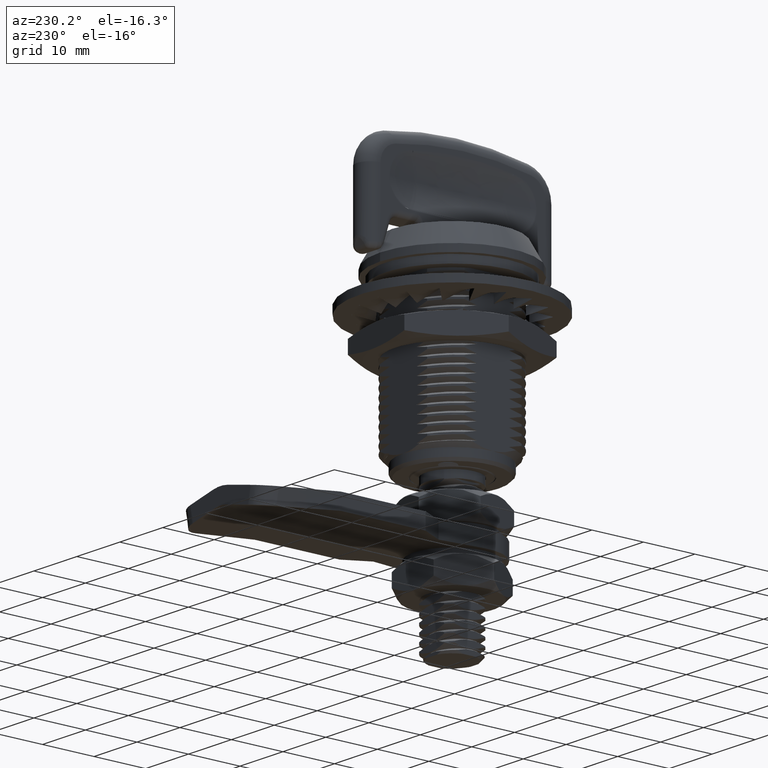
[diagram: clean part render]
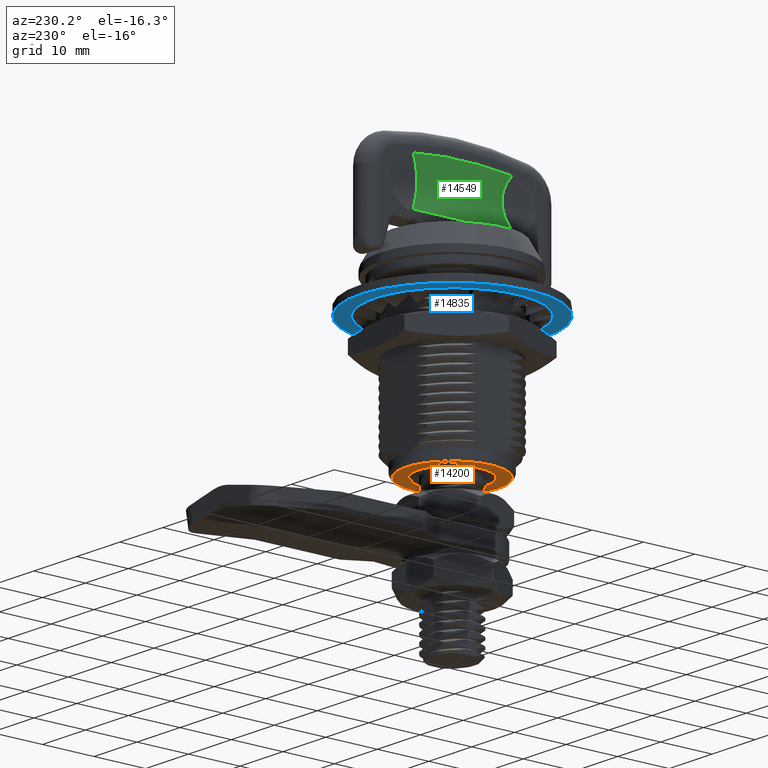
[diagram: same view with three faces highlighted in distinct colors, each labeled with its STEP entity id]
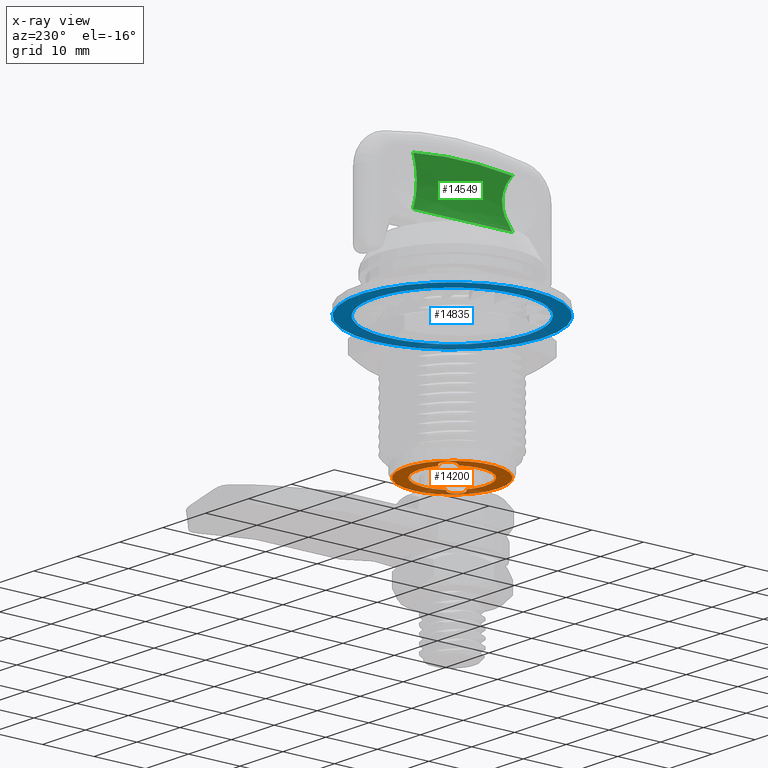
[diagram: x-ray of the same camera — body ghosted, the three highlighted faces saturated]
A machine part, auxiliary view with three faces highlighted in distinct colors.
The next image is the same camera in x-ray (body ghosted, the three faces saturated) — at least one of them is partly hidden behind the body in this view.
Their STEP definitions:

[orange] entity #14200 — the highlighted planar face has unit normal (0, 0, -1).
#2045=LINE('',#18515,#2724);
#2049=LINE('',#18524,#2728);
#2052=LINE('',#18533,#2731);
#2055=LINE('',#18540,#2734);
#2724=VECTOR('',#16014,0.624068695476987);
#2728=VECTOR('',#16024,0.624068695477009);
#2731=VECTOR('',#16033,0.624068695476988);
#2734=VECTOR('',#16042,0.624068695477009);
#3433=FACE_BOUND('',#4374,.T.);
#3503=FACE_OUTER_BOUND('',#4373,.T.);
#4373=EDGE_LOOP('',(#9405));
#4374=EDGE_LOOP('',(#9406,#9407,#9408,#9409,#9410,#9411,#9412,#9413));
#5295=CIRCLE('',#15081,6.55);
#5296=CIRCLE('',#15084,1.5);
#5297=CIRCLE('',#15087,6.55);
#5298=CIRCLE('',#15091,1.5);
#5299=CIRCLE('',#15093,8.99999999999954);
#5572=VERTEX_POINT('',#18512);
#5573=VERTEX_POINT('',#18514);
#5574=VERTEX_POINT('',#18518);
#5575=VERTEX_POINT('',#18522);
#5576=VERTEX_POINT('',#18526);
#5577=VERTEX_POINT('',#18530);
#5578=VERTEX_POINT('',#18532);
#5579=VERTEX_POINT('',#18536);
#5580=VERTEX_POINT('',#18545);
#7068=EDGE_CURVE('',#5573,#5572,#2045,.T.);
#7070=EDGE_CURVE('',#5572,#5574,#5295,.T.);
#7073=EDGE_CURVE('',#5574,#5575,#2049,.T.);
#7074=EDGE_CURVE('',#5576,#5573,#5296,.T.);
#7077=EDGE_CURVE('',#5578,#5577,#2052,.T.);
#7080=EDGE_CURVE('',#5577,#5579,#5297,.T.);
#7081=EDGE_CURVE('',#5579,#5576,#2055,.T.);
#7082=EDGE_CURVE('',#5575,#5578,#5298,.T.);
#7083=EDGE_CURVE('',#5580,#5580,#5299,.T.);
#9405=ORIENTED_EDGE('',*,*,#7083,.T.);
#9406=ORIENTED_EDGE('',*,*,#7073,.T.);
#9407=ORIENTED_EDGE('',*,*,#7082,.T.);
#9408=ORIENTED_EDGE('',*,*,#7077,.T.);
#9409=ORIENTED_EDGE('',*,*,#7080,.T.);
#9410=ORIENTED_EDGE('',*,*,#7081,.T.);
#9411=ORIENTED_EDGE('',*,*,#7074,.T.);
#9412=ORIENTED_EDGE('',*,*,#7068,.T.);
#9413=ORIENTED_EDGE('',*,*,#7070,.T.);
#13959=PLANE('',#15092);
#14200=ADVANCED_FACE('',(#3503,#3433),#13959,.T.);
#15081=AXIS2_PLACEMENT_3D('',#18519,#16018,#16019);
#15084=AXIS2_PLACEMENT_3D('',#18527,#16027,#16028);
#15087=AXIS2_PLACEMENT_3D('',#18538,#16038,#16039);
#15091=AXIS2_PLACEMENT_3D('',#18543,#16047,#16048);
#15092=AXIS2_PLACEMENT_3D('',#18544,#16049,#16050);
#15093=AXIS2_PLACEMENT_3D('',#18546,#16051,#16052);
#16014=DIRECTION('',(0.707106781186548,0.,0.707106781186547));
#16018=DIRECTION('center_axis',(0.,1.,0.));
#16019=DIRECTION('ref_axis',(0.,0.,-1.));
#16024=DIRECTION('',(0.707106781186547,0.,0.707106781186547));
#16027=DIRECTION('center_axis',(0.,1.,0.));
#16028=DIRECTION('ref_axis',(0.,0.,-1.));
#16033=DIRECTION('',(-0.707106781186548,0.,-0.707106781186548));
#16038=DIRECTION('center_axis',(0.,1.,0.));
#16039=DIRECTION('ref_axis',(0.,0.,-1.));
#16042=DIRECTION('',(-0.707106781186547,0.,-0.707106781186547));
#16047=DIRECTION('center_axis',(0.,1.,0.));
#16048=DIRECTION('ref_axis',(0.,0.,-1.));
#16049=DIRECTION('center_axis',(0.,-1.,0.));
#16050=DIRECTION('ref_axis',(0.,0.,-1.));
#16051=DIRECTION('center_axis',(-1.82602471155464E-16,-1.,0.));
#16052=DIRECTION('ref_axis',(-1.,1.82602471155464E-16,0.));
#18512=CARTESIAN_POINT('',(-5.56912443358798,-31.,-3.44780409002798));
#18514=CARTESIAN_POINT('',(-6.010407640086,-31.,-3.889087296526));
#18515=CARTESIAN_POINT('',(-6.010407640086,-31.,-3.889087296526));
#18518=CARTESIAN_POINT('',(3.44780409002797,-31.,5.56912443358796));
#18519=CARTESIAN_POINT('Origin',(0.,-31.,0.));
#18522=CARTESIAN_POINT('',(3.889087296526,-31.,6.010407640086));
#18524=CARTESIAN_POINT('',(3.889087296526,-31.,6.010407640086));
#18526=CARTESIAN_POINT('',(-3.88908729652609,-31.,-6.01040764008591));
#18527=CARTESIAN_POINT('Origin',(-4.949747468306,-31.,-4.949747468306));
#18530=CARTESIAN_POINT('',(5.56912443358798,-31.,3.44780409002798));
#18532=CARTESIAN_POINT('',(6.010407640086,-31.,3.889087296526));
#18533=CARTESIAN_POINT('',(-3.889087296526,-31.,-6.010407640086));
#18536=CARTESIAN_POINT('',(-3.44780409002797,-31.,-5.56912443358796));
#18538=CARTESIAN_POINT('Origin',(0.,-31.,0.));
#18540=CARTESIAN_POINT('',(-3.889087296526,-31.,-6.010407640086));
#18543=CARTESIAN_POINT('Origin',(4.949747468306,-31.,4.949747468306));
#18544=CARTESIAN_POINT('Origin',(0.,-31.,0.));
#18545=CARTESIAN_POINT('',(8.99999999999954,-30.9999999999995,-1.10218211923256E-15));
#18546=CARTESIAN_POINT('Origin',(-9.13012355777453E-17,-30.9999999999995,
0.));

[blue] entity #14835 — the highlighted planar face has unit normal (0, 0, 1).
#147=ELLIPSE('',#15727,32.5760967751827,22.0747997630033);
#148=ELLIPSE('',#15729,32.5763814092082,22.0748961278795);
#149=ELLIPSE('',#15731,32.5760495895535,22.0747837892484);
#150=ELLIPSE('',#15733,32.5760941326299,22.0747988658225);
#151=ELLIPSE('',#15735,32.5725137093716,22.0735857247032);
#152=ELLIPSE('',#15738,31.2986678433796,21.6383626415796);
#153=ELLIPSE('',#15740,32.572514535945,22.0735860047616);
#154=ELLIPSE('',#15742,32.5725565394001,22.0736002242867);
#155=ELLIPSE('',#15744,32.5725116598026,22.0735850326709);
#156=ELLIPSE('',#15746,32.5728176659256,22.0736886414687);
#157=ELLIPSE('',#15748,32.572484225991,22.0735757467888);
#158=ELLIPSE('',#15750,32.5725001807261,22.0735811459485);
#159=ELLIPSE('',#15752,32.5758936209566,22.0747310467664);
#160=ELLIPSE('',#15755,31.3013645356031,21.6392952094517);
#161=ELLIPSE('',#15757,32.5758957947356,22.0747317811291);
#162=ELLIPSE('',#15759,32.5761302037874,22.0748110762977);
#1578=B_SPLINE_CURVE_WITH_KNOTS('',3,(#80548,#80549,#80550,#80551,#80552,
#80553),.UNSPECIFIED.,.F.,.F.,(4,1,1,4),(0.,0.3333333333333,0.6666666666667,
0.999990649445483),.UNSPECIFIED.);
#1579=B_SPLINE_CURVE_WITH_KNOTS('',3,(#80559,#80560,#80561,#80562,#80563,
#80564),.UNSPECIFIED.,.F.,.F.,(4,1,1,4),(0.,0.3333333333333,0.6666666666667,
0.999997280662208),.UNSPECIFIED.);
#1580=B_SPLINE_CURVE_WITH_KNOTS('',3,(#80570,#80571,#80572,#80573,#80574,
#80575),.UNSPECIFIED.,.F.,.F.,(4,1,1,4),(0.,0.3333333333333,0.6666666666667,
0.999997280667224),.UNSPECIFIED.);
#1581=B_SPLINE_CURVE_WITH_KNOTS('',3,(#80581,#80582,#80583,#80584,#80585,
#80586),.UNSPECIFIED.,.F.,.F.,(4,1,1,4),(0.,0.3333333333333,0.6666666666667,
0.999997280682002),.UNSPECIFIED.);
#1582=B_SPLINE_CURVE_WITH_KNOTS('',3,(#80592,#80593,#80594,#80595,#80596,
#80597),.UNSPECIFIED.,.F.,.F.,(4,1,1,4),(0.,0.3333333333333,0.6666666666667,
0.99999729716669),.UNSPECIFIED.);
#1583=B_SPLINE_CURVE_WITH_KNOTS('',3,(#80603,#80604,#80605,#80606,#80607,
#80608),.UNSPECIFIED.,.F.,.F.,(4,1,1,4),(0.,0.3333333333333,0.6666666666667,
0.999997297160489),.UNSPECIFIED.);
#1584=B_SPLINE_CURVE_WITH_KNOTS('',3,(#80610,#80611,#80612,#80613,#80614,
#80615,#80616,#80617,#80618,#80619,#80620,#80621,#80622,#80623,#80624,#80625,
#80626,#80627,#80628),.UNSPECIFIED.,.F.,.F.,(4,3,3,3,3,3,4),(4.89604267970113E-6,
0.257614100592895,0.333333333467669,0.62185317693182,0.666666666733885,
0.918912532930049,1.),.UNSPECIFIED.);
#1585=B_SPLINE_CURVE_WITH_KNOTS('',3,(#80632,#80633,#80634,#80635,#80636,
#80637,#80638,#80639,#80640,#80641,#80642,#80643,#80644,#80645,#80646,#80647,
#80648,#80649,#80650),.UNSPECIFIED.,.F.,.F.,(4,3,3,3,3,3,4),(2.17286647302391E-14,
0.251070032418352,0.333333333288034,0.621984218433627,0.666666666576146,
0.924233463963143,0.999995049320005),.UNSPECIFIED.);
#1586=B_SPLINE_CURVE_WITH_KNOTS('',3,(#80656,#80657,#80658,#80659,#80660,
#80661),.UNSPECIFIED.,.F.,.F.,(4,1,1,4),(0.,0.3333333333333,0.6666666666667,
0.999997297154749),.UNSPECIFIED.);
#1587=B_SPLINE_CURVE_WITH_KNOTS('',3,(#80667,#80668,#80669,#80670,#80671,
#80672),.UNSPECIFIED.,.F.,.F.,(4,1,1,4),(0.,0.3333333333333,0.6666666666667,
0.999997297342256),.UNSPECIFIED.);
#1588=B_SPLINE_CURVE_WITH_KNOTS('',3,(#80678,#80679,#80680,#80681,#80682,
#80683),.UNSPECIFIED.,.F.,.F.,(4,1,1,4),(0.,0.3333333333333,0.6666666666667,
0.999997297346294),.UNSPECIFIED.);
#1589=B_SPLINE_CURVE_WITH_KNOTS('',3,(#80689,#80690,#80691,#80692,#80693,
#80694),.UNSPECIFIED.,.F.,.F.,(4,1,1,4),(0.,0.3333333333333,0.6666666666667,
0.999997297361714),.UNSPECIFIED.);
#1590=B_SPLINE_CURVE_WITH_KNOTS('',3,(#80700,#80701,#80702,#80703,#80704,
#80705),.UNSPECIFIED.,.F.,.F.,(4,1,1,4),(0.,0.3333333333333,0.6666666666667,
0.99999729733616),.UNSPECIFIED.);
#1591=B_SPLINE_CURVE_WITH_KNOTS('',3,(#80711,#80712,#80713,#80714,#80715,
#80716),.UNSPECIFIED.,.F.,.F.,(4,1,1,4),(0.,0.3333333333333,0.6666666666667,
0.999997297328471),.UNSPECIFIED.);
#1592=B_SPLINE_CURVE_WITH_KNOTS('',3,(#80722,#80723,#80724,#80725,#80726,
#80727),.UNSPECIFIED.,.F.,.F.,(4,1,1,4),(0.,0.3333333333333,0.6666666666667,
0.999997276511755),.UNSPECIFIED.);
#1593=B_SPLINE_CURVE_WITH_KNOTS('',3,(#80733,#80734,#80735,#80736,#80737,
#80738),.UNSPECIFIED.,.F.,.F.,(4,1,1,4),(0.,0.3333333333333,0.6666666666667,
0.999997276495621),.UNSPECIFIED.);
#1594=B_SPLINE_CURVE_WITH_KNOTS('',3,(#80740,#80741,#80742,#80743,#80744,
#80745,#80746,#80747,#80748,#80749,#80750,#80751,#80752,#80753,#80754,#80755,
#80756,#80757,#80758),.UNSPECIFIED.,.F.,.F.,(4,3,3,3,3,3,4),(4.89604216553796E-6,
0.257614149896902,0.333333333467354,0.621854877969275,0.666666666733727,
0.918913017984488,1.),.UNSPECIFIED.);
#1595=B_SPLINE_CURVE_WITH_KNOTS('',3,(#80762,#80763,#80764,#80765,#80766,
#80767,#80768,#80769,#80770,#80771,#80772,#80773,#80774,#80775,#80776,#80777,
#80778,#80779,#80780),.UNSPECIFIED.,.F.,.F.,(4,3,3,3,3,3,4),(2.14852918552607E-14,
0.251082535720633,0.33333333327682,0.62198253909785,0.66666666655372,0.924233448881374,
0.999995049286406),.UNSPECIFIED.);
#1596=B_SPLINE_CURVE_WITH_KNOTS('',3,(#80786,#80787,#80788,#80789,#80790,
#80791),.UNSPECIFIED.,.F.,.F.,(4,1,1,4),(0.,0.3333333333333,0.6666666666667,
0.999997276465651),.UNSPECIFIED.);
#1597=B_SPLINE_CURVE_WITH_KNOTS('',3,(#80797,#80798,#80799,#80800,#80801,
#80802),.UNSPECIFIED.,.F.,.F.,(4,1,1,4),(0.,0.3333333333333,0.6666666666667,
0.999997280636517),.UNSPECIFIED.);
#3481=FACE_BOUND('',#5057,.T.);
#4138=FACE_OUTER_BOUND('',#5056,.T.);
#5056=EDGE_LOOP('',(#12873));
#5057=EDGE_LOOP('',(#12874,#12875,#12876,#12877,#12878,#12879,#12880,#12881,
#12882,#12883,#12884,#12885,#12886,#12887,#12888,#12889,#12890,#12891,#12892,
#12893,#12894,#12895,#12896,#12897,#12898,#12899,#12900,#12901,#12902,#12903,
#12904,#12905,#12906,#12907,#12908,#12909,#12910,#12911,#12912,#12913,#12914,
#12915,#12916,#12917,#12918,#12919,#12920,#12921,#12922,#12923,#12924,#12925,
#12926,#12927));
#5498=CIRCLE('',#15724,17.9);
#5499=CIRCLE('',#15726,15.);
#5500=CIRCLE('',#15728,15.);
#5501=CIRCLE('',#15730,15.);
#5502=CIRCLE('',#15732,15.);
#5503=CIRCLE('',#15734,15.);
#5504=CIRCLE('',#15736,15.);
#5505=CIRCLE('',#15737,15.);
#5506=CIRCLE('',#15739,15.);
#5507=CIRCLE('',#15741,15.);
#5508=CIRCLE('',#15743,15.);
#5509=CIRCLE('',#15745,15.);
#5510=CIRCLE('',#15747,15.);
#5511=CIRCLE('',#15749,15.);
#5512=CIRCLE('',#15751,15.);
#5513=CIRCLE('',#15753,15.);
#5514=CIRCLE('',#15754,15.);
#5515=CIRCLE('',#15756,15.);
#5516=CIRCLE('',#15758,15.);
#6749=VERTEX_POINT('',#80541);
#6750=VERTEX_POINT('',#80544);
#6751=VERTEX_POINT('',#80545);
#6752=VERTEX_POINT('',#80547);
#6753=VERTEX_POINT('',#80554);
#6754=VERTEX_POINT('',#80556);
#6755=VERTEX_POINT('',#80558);
#6756=VERTEX_POINT('',#80565);
#6757=VERTEX_POINT('',#80567);
#6758=VERTEX_POINT('',#80569);
#6759=VERTEX_POINT('',#80576);
#6760=VERTEX_POINT('',#80578);
#6761=VERTEX_POINT('',#80580);
#6762=VERTEX_POINT('',#80587);
#6763=VERTEX_POINT('',#80589);
#6764=VERTEX_POINT('',#80591);
#6765=VERTEX_POINT('',#80598);
#6766=VERTEX_POINT('',#80600);
#6767=VERTEX_POINT('',#80602);
#6768=VERTEX_POINT('',#80609);
#6769=VERTEX_POINT('',#80629);
#6770=VERTEX_POINT('',#80631);
#6771=VERTEX_POINT('',#80651);
#6772=VERTEX_POINT('',#80653);
#6773=VERTEX_POINT('',#80655);
#6774=VERTEX_POINT('',#80662);
#6775=VERTEX_POINT('',#80664);
#6776=VERTEX_POINT('',#80666);
#6777=VERTEX_POINT('',#80673);
#6778=VERTEX_POINT('',#80675);
#6779=VERTEX_POINT('',#80677);
#6780=VERTEX_POINT('',#80684);
#6781=VERTEX_POINT('',#80686);
#6782=VERTEX_POINT('',#80688);
#6783=VERTEX_POINT('',#80695);
#6784=VERTEX_POINT('',#80697);
#6785=VERTEX_POINT('',#80699);
#6786=VERTEX_POINT('',#80706);
#6787=VERTEX_POINT('',#80708);
#6788=VERTEX_POINT('',#80710);
#6789=VERTEX_POINT('',#80717);
#6790=VERTEX_POINT('',#80719);
#6791=VERTEX_POINT('',#80721);
#6792=VERTEX_POINT('',#80728);
#6793=VERTEX_POINT('',#80730);
#6794=VERTEX_POINT('',#80732);
#6795=VERTEX_POINT('',#80739);
#6796=VERTEX_POINT('',#80759);
#6797=VERTEX_POINT('',#80761);
#6798=VERTEX_POINT('',#80781);
#6799=VERTEX_POINT('',#80783);
#6800=VERTEX_POINT('',#80785);
#6801=VERTEX_POINT('',#80792);
#6802=VERTEX_POINT('',#80794);
#6803=VERTEX_POINT('',#80796);
#8839=EDGE_CURVE('',#6749,#6749,#5498,.T.);
#8840=EDGE_CURVE('',#6750,#6751,#5499,.T.);
#8841=EDGE_CURVE('',#6752,#6750,#1578,.T.);
#8842=EDGE_CURVE('',#6753,#6752,#147,.T.);
#8843=EDGE_CURVE('',#6754,#6753,#5500,.T.);
#8844=EDGE_CURVE('',#6755,#6754,#1579,.T.);
#8845=EDGE_CURVE('',#6756,#6755,#148,.T.);
#8846=EDGE_CURVE('',#6757,#6756,#5501,.T.);
#8847=EDGE_CURVE('',#6758,#6757,#1580,.T.);
#8848=EDGE_CURVE('',#6759,#6758,#149,.T.);
#8849=EDGE_CURVE('',#6760,#6759,#5502,.T.);
#8850=EDGE_CURVE('',#6761,#6760,#1581,.T.);
#8851=EDGE_CURVE('',#6762,#6761,#150,.T.);
#8852=EDGE_CURVE('',#6763,#6762,#5503,.T.);
#8853=EDGE_CURVE('',#6764,#6763,#1582,.T.);
#8854=EDGE_CURVE('',#6765,#6764,#151,.T.);
#8855=EDGE_CURVE('',#6766,#6765,#5504,.T.);
#8856=EDGE_CURVE('',#6767,#6766,#1583,.T.);
#8857=EDGE_CURVE('',#6768,#6767,#1584,.T.);
#8858=EDGE_CURVE('',#6768,#6769,#5505,.T.);
#8859=EDGE_CURVE('',#6770,#6769,#1585,.T.);
#8860=EDGE_CURVE('',#6771,#6770,#152,.T.);
#8861=EDGE_CURVE('',#6772,#6771,#5506,.T.);
#8862=EDGE_CURVE('',#6773,#6772,#1586,.T.);
#8863=EDGE_CURVE('',#6774,#6773,#153,.T.);
#8864=EDGE_CURVE('',#6775,#6774,#5507,.T.);
#8865=EDGE_CURVE('',#6776,#6775,#1587,.T.);
#8866=EDGE_CURVE('',#6777,#6776,#154,.T.);
#8867=EDGE_CURVE('',#6778,#6777,#5508,.T.);
#8868=EDGE_CURVE('',#6779,#6778,#1588,.T.);
#8869=EDGE_CURVE('',#6780,#6779,#155,.T.);
#8870=EDGE_CURVE('',#6781,#6780,#5509,.T.);
#8871=EDGE_CURVE('',#6782,#6781,#1589,.T.);
#8872=EDGE_CURVE('',#6783,#6782,#156,.T.);
#8873=EDGE_CURVE('',#6784,#6783,#5510,.T.);
#8874=EDGE_CURVE('',#6785,#6784,#1590,.T.);
#8875=EDGE_CURVE('',#6786,#6785,#157,.T.);
#8876=EDGE_CURVE('',#6787,#6786,#5511,.T.);
#8877=EDGE_CURVE('',#6788,#6787,#1591,.T.);
#8878=EDGE_CURVE('',#6789,#6788,#158,.T.);
#8879=EDGE_CURVE('',#6790,#6789,#5512,.T.);
#8880=EDGE_CURVE('',#6791,#6790,#1592,.T.);
#8881=EDGE_CURVE('',#6792,#6791,#159,.T.);
#8882=EDGE_CURVE('',#6793,#6792,#5513,.T.);
#8883=EDGE_CURVE('',#6794,#6793,#1593,.T.);
#8884=EDGE_CURVE('',#6795,#6794,#1594,.T.);
#8885=EDGE_CURVE('',#6795,#6796,#5514,.T.);
#8886=EDGE_CURVE('',#6797,#6796,#1595,.T.);
#8887=EDGE_CURVE('',#6798,#6797,#160,.T.);
#8888=EDGE_CURVE('',#6799,#6798,#5515,.T.);
#8889=EDGE_CURVE('',#6800,#6799,#1596,.T.);
#8890=EDGE_CURVE('',#6801,#6800,#161,.T.);
#8891=EDGE_CURVE('',#6802,#6801,#5516,.T.);
#8892=EDGE_CURVE('',#6803,#6802,#1597,.T.);
#8893=EDGE_CURVE('',#6751,#6803,#162,.T.);
#12873=ORIENTED_EDGE('',*,*,#8839,.F.);
#12874=ORIENTED_EDGE('',*,*,#8840,.F.);
#12875=ORIENTED_EDGE('',*,*,#8841,.F.);
#12876=ORIENTED_EDGE('',*,*,#8842,.F.);
#12877=ORIENTED_EDGE('',*,*,#8843,.F.);
#12878=ORIENTED_EDGE('',*,*,#8844,.F.);
#12879=ORIENTED_EDGE('',*,*,#8845,.F.);
#12880=ORIENTED_EDGE('',*,*,#8846,.F.);
#12881=ORIENTED_EDGE('',*,*,#8847,.F.);
#12882=ORIENTED_EDGE('',*,*,#8848,.F.);
#12883=ORIENTED_EDGE('',*,*,#8849,.F.);
#12884=ORIENTED_EDGE('',*,*,#8850,.F.);
#12885=ORIENTED_EDGE('',*,*,#8851,.F.);
#12886=ORIENTED_EDGE('',*,*,#8852,.F.);
#12887=ORIENTED_EDGE('',*,*,#8853,.F.);
#12888=ORIENTED_EDGE('',*,*,#8854,.F.);
#12889=ORIENTED_EDGE('',*,*,#8855,.F.);
#12890=ORIENTED_EDGE('',*,*,#8856,.F.);
#12891=ORIENTED_EDGE('',*,*,#8857,.F.);
#12892=ORIENTED_EDGE('',*,*,#8858,.T.);
#12893=ORIENTED_EDGE('',*,*,#8859,.F.);
#12894=ORIENTED_EDGE('',*,*,#8860,.F.);
#12895=ORIENTED_EDGE('',*,*,#8861,.F.);
#12896=ORIENTED_EDGE('',*,*,#8862,.F.);
#12897=ORIENTED_EDGE('',*,*,#8863,.F.);
#12898=ORIENTED_EDGE('',*,*,#8864,.F.);
#12899=ORIENTED_EDGE('',*,*,#8865,.F.);
#12900=ORIENTED_EDGE('',*,*,#8866,.F.);
#12901=ORIENTED_EDGE('',*,*,#8867,.F.);
#12902=ORIENTED_EDGE('',*,*,#8868,.F.);
#12903=ORIENTED_EDGE('',*,*,#8869,.F.);
#12904=ORIENTED_EDGE('',*,*,#8870,.F.);
#12905=ORIENTED_EDGE('',*,*,#8871,.F.);
#12906=ORIENTED_EDGE('',*,*,#8872,.F.);
#12907=ORIENTED_EDGE('',*,*,#8873,.F.);
#12908=ORIENTED_EDGE('',*,*,#8874,.F.);
#12909=ORIENTED_EDGE('',*,*,#8875,.F.);
#12910=ORIENTED_EDGE('',*,*,#8876,.F.);
#12911=ORIENTED_EDGE('',*,*,#8877,.F.);
#12912=ORIENTED_EDGE('',*,*,#8878,.F.);
#12913=ORIENTED_EDGE('',*,*,#8879,.F.);
#12914=ORIENTED_EDGE('',*,*,#8880,.F.);
#12915=ORIENTED_EDGE('',*,*,#8881,.F.);
#12916=ORIENTED_EDGE('',*,*,#8882,.F.);
#12917=ORIENTED_EDGE('',*,*,#8883,.F.);
#12918=ORIENTED_EDGE('',*,*,#8884,.F.);
#12919=ORIENTED_EDGE('',*,*,#8885,.T.);
#12920=ORIENTED_EDGE('',*,*,#8886,.F.);
#12921=ORIENTED_EDGE('',*,*,#8887,.F.);
#12922=ORIENTED_EDGE('',*,*,#8888,.F.);
#12923=ORIENTED_EDGE('',*,*,#8889,.F.);
#12924=ORIENTED_EDGE('',*,*,#8890,.F.);
#12925=ORIENTED_EDGE('',*,*,#8891,.F.);
#12926=ORIENTED_EDGE('',*,*,#8892,.F.);
#12927=ORIENTED_EDGE('',*,*,#8893,.F.);
#14125=PLANE('',#15725);
#14835=ADVANCED_FACE('',(#4138,#3481),#14125,.F.);
#15724=AXIS2_PLACEMENT_3D('',#80542,#17770,#17771);
#15725=AXIS2_PLACEMENT_3D('',#80543,#17772,#17773);
#15726=AXIS2_PLACEMENT_3D('',#80546,#17774,#17775);
#15727=AXIS2_PLACEMENT_3D('',#80555,#17776,#17777);
#15728=AXIS2_PLACEMENT_3D('',#80557,#17778,#17779);
#15729=AXIS2_PLACEMENT_3D('',#80566,#17780,#17781);
#15730=AXIS2_PLACEMENT_3D('',#80568,#17782,#17783);
#15731=AXIS2_PLACEMENT_3D('',#80577,#17784,#17785);
#15732=AXIS2_PLACEMENT_3D('',#80579,#17786,#17787);
#15733=AXIS2_PLACEMENT_3D('',#80588,#17788,#17789);
#15734=AXIS2_PLACEMENT_3D('',#80590,#17790,#17791);
#15735=AXIS2_PLACEMENT_3D('',#80599,#17792,#17793);
#15736=AXIS2_PLACEMENT_3D('',#80601,#17794,#17795);
#15737=AXIS2_PLACEMENT_3D('',#80630,#17796,#17797);
#15738=AXIS2_PLACEMENT_3D('',#80652,#17798,#17799);
#15739=AXIS2_PLACEMENT_3D('',#80654,#17800,#17801);
#15740=AXIS2_PLACEMENT_3D('',#80663,#17802,#17803);
#15741=AXIS2_PLACEMENT_3D('',#80665,#17804,#17805);
#15742=AXIS2_PLACEMENT_3D('',#80674,#17806,#17807);
#15743=AXIS2_PLACEMENT_3D('',#80676,#17808,#17809);
#15744=AXIS2_PLACEMENT_3D('',#80685,#17810,#17811);
#15745=AXIS2_PLACEMENT_3D('',#80687,#17812,#17813);
#15746=AXIS2_PLACEMENT_3D('',#80696,#17814,#17815);
#15747=AXIS2_PLACEMENT_3D('',#80698,#17816,#17817);
#15748=AXIS2_PLACEMENT_3D('',#80707,#17818,#17819);
#15749=AXIS2_PLACEMENT_3D('',#80709,#17820,#17821);
#15750=AXIS2_PLACEMENT_3D('',#80718,#17822,#17823);
#15751=AXIS2_PLACEMENT_3D('',#80720,#17824,#17825);
#15752=AXIS2_PLACEMENT_3D('',#80729,#17826,#17827);
#15753=AXIS2_PLACEMENT_3D('',#80731,#17828,#17829);
#15754=AXIS2_PLACEMENT_3D('',#80760,#17830,#17831);
#15755=AXIS2_PLACEMENT_3D('',#80782,#17832,#17833);
#15756=AXIS2_PLACEMENT_3D('',#80784,#17834,#17835);
#15757=AXIS2_PLACEMENT_3D('',#80793,#17836,#17837);
#15758=AXIS2_PLACEMENT_3D('',#80795,#17838,#17839);
#15759=AXIS2_PLACEMENT_3D('',#80803,#17840,#17841);
#17770=DIRECTION('center_axis',(0.,1.,0.));
#17771=DIRECTION('ref_axis',(0.,0.,-1.));
#17772=DIRECTION('center_axis',(0.,1.,0.));
#17773=DIRECTION('ref_axis',(0.,0.,-1.));
#17774=DIRECTION('center_axis',(0.,-1.,0.));
#17775=DIRECTION('ref_axis',(0.870359775681281,0.,0.492416349115289));
#17776=DIRECTION('center_axis',(-5.18149960831903E-6,-0.999999999985621,
-1.38212884529684E-6));
#17777=DIRECTION('ref_axis',(0.95931244358276,-5.3609165118242E-6,0.282346658486575));
#17778=DIRECTION('center_axis',(0.,-1.,0.));
#17779=DIRECTION('ref_axis',(0.9862869689402,0.,0.1650394343748));
#17780=DIRECTION('center_axis',(-5.34156373652646E-6,-0.999999999985622,
4.73390949905439E-7));
#17781=DIRECTION('ref_axis',(0.998027061878059,-5.36074711635988E-6,-0.0627852190432612));
#17782=DIRECTION('center_axis',(0.,-1.,0.));
#17783=DIRECTION('ref_axis',(0.983253397687806,0.,-0.182243671866501));
#17784=DIRECTION('center_axis',(-4.85841084939868E-6,-0.999999999985617,
2.27220217267391E-6));
#17785=DIRECTION('ref_axis',(0.916364901680019,-5.36173982495408E-6,-0.400344060703067));
#17786=DIRECTION('center_axis',(0.,-1.,0.));
#17787=DIRECTION('ref_axis',(0.861624955395062,0.,-0.507545501645377));
#17788=DIRECTION('center_axis',(-3.78770853081968E-6,-0.999999999985621,
3.79624589522924E-6));
#17789=DIRECTION('ref_axis',(0.724175599315937,-5.36091655656493E-6,-0.689615618534459));
#17790=DIRECTION('center_axis',(0.,-1.,0.));
#17791=DIRECTION('ref_axis',(0.636071818433165,0.,-0.771629860616557));
#17792=DIRECTION('center_axis',(-2.26121467194384E-6,-0.999999999985617,
4.86353310842216E-6));
#17793=DIRECTION('ref_axis',(0.444643605651468,-5.36173810233184E-6,-0.895707577239645));
#17794=DIRECTION('center_axis',(0.,-1.,0.));
#17795=DIRECTION('ref_axis',(0.333799038552695,0.,-0.942644260504087));
#17796=DIRECTION('center_axis',(0.,1.,0.));
#17797=DIRECTION('ref_axis',(0.00873359573436399,0.,-0.999961861425499));
#17798=DIRECTION('center_axis',(1.33521325024097E-6,-0.999999999986828,
4.95590998869242E-6));
#17799=DIRECTION('ref_axis',(-0.234824842652416,-5.13087259599155E-6,-0.972037701556345));
#17800=DIRECTION('center_axis',(0.,-1.,0.));
#17801=DIRECTION('ref_axis',(-0.350215152388193,0.,-0.936669283705682));
#17802=DIRECTION('center_axis',(3.08133588792822E-6,-0.999999999985617,
4.39003590332198E-6));
#17803=DIRECTION('ref_axis',(-0.55338371588205,-5.36173810248998E-6,-0.832926445112548));
#17804=DIRECTION('center_axis',(0.,-1.,0.));
#17805=DIRECTION('ref_axis',(-0.6494543571451,0.,-0.7604005773178));
#17806=DIRECTION('center_axis',(4.39569267284239E-6,-0.999999999985625,
3.07055304618443E-6));
#17807=DIRECTION('ref_axis',(0.804888212909002,5.36018864772611E-6,0.593426461064403));
#17808=DIRECTION('center_axis',(0.,-1.,0.));
#17809=DIRECTION('ref_axis',(-0.870359781388221,0.,-0.492416339028112));
#17810=DIRECTION('center_axis',(5.1814987371233E-6,-0.999999999985621,1.38212855372953E-6));
#17811=DIRECTION('ref_axis',(0.959311314772916,5.36091504565023E-6,0.282350493748319));
#17812=DIRECTION('center_axis',(0.,-1.,0.));
#17813=DIRECTION('ref_axis',(-0.986286970850619,0.,-0.165039422958003));
#17814=DIRECTION('center_axis',(5.34156251784705E-6,-0.999999999985622,
-4.73390906384433E-7));
#17815=DIRECTION('ref_axis',(0.998027312098286,5.3607453509596E-6,-0.0627812414430705));
#17816=DIRECTION('center_axis',(0.,-1.,0.));
#17817=DIRECTION('ref_axis',(-0.983253395583481,0.,0.182243683219897));
#17818=DIRECTION('center_axis',(4.85840975536705E-6,-0.999999999985617,
-2.27220173757639E-6));
#17819=DIRECTION('ref_axis',(0.916366498101928,5.36173810136335E-6,-0.400340406563791));
#17820=DIRECTION('center_axis',(0.,-1.,0.));
#17821=DIRECTION('ref_axis',(-0.861624949538708,0.,0.507545511587305));
#17822=DIRECTION('center_axis',(3.78770774659441E-6,-0.999999999985621,
-3.79624519887909E-6));
#17823=DIRECTION('ref_axis',(0.72417835894334,5.36091495981565E-6,-0.689612720597142));
#17824=DIRECTION('center_axis',(0.,-1.,0.));
#17825=DIRECTION('ref_axis',(-0.636071829480821,0.,0.771629851509726));
#17826=DIRECTION('center_axis',(2.26121515740337E-6,-0.999999999985617,
-4.8635339991074E-6));
#17827=DIRECTION('ref_axis',(0.444640056420922,5.36173965940134E-6,-0.895709339125841));
#17828=DIRECTION('center_axis',(0.,-1.,0.));
#17829=DIRECTION('ref_axis',(-0.333799052054821,0.,0.942644255722859));
#17830=DIRECTION('center_axis',(0.,1.,0.));
#17831=DIRECTION('ref_axis',(-0.00873359573438299,0.,0.999961861425499));
#17832=DIRECTION('center_axis',(-1.33521346254419E-6,-0.999999999986828,
-4.95591103594381E-6));
#17833=DIRECTION('ref_axis',(-0.234828788230325,5.13087420812155E-6,-0.972036748375261));
#17834=DIRECTION('center_axis',(0.,-1.,0.));
#17835=DIRECTION('ref_axis',(0.350215138955792,0.,0.936669288727978));
#17836=DIRECTION('center_axis',(-3.08133653496851E-6,-0.999999999985617,
-4.39003694920087E-6));
#17837=DIRECTION('ref_axis',(-0.553387012342825,5.36173987445383E-6,-0.832924254984529));
#17838=DIRECTION('center_axis',(0.,-1.,0.));
#17839=DIRECTION('ref_axis',(0.649454348341019,0.,0.760400584837322));
#17840=DIRECTION('center_axis',(-4.39569363476187E-6,-0.999999999985625,
-3.07055379642673E-6));
#17841=DIRECTION('ref_axis',(0.80489058141966,-5.36019041420964E-6,0.59342324854457));
#80541=CARTESIAN_POINT('',(0.,27.,17.9));
#80542=CARTESIAN_POINT('Origin',(0.,27.,0.));
#80543=CARTESIAN_POINT('Origin',(0.,27.,0.));
#80544=CARTESIAN_POINT('',(13.0553966271535,27.00000007374,7.38624523216657));
#80545=CARTESIAN_POINT('',(12.924382507585,26.9999994834562,7.6131683609963));
#80546=CARTESIAN_POINT('Origin',(0.,27.,0.));
#80547=CARTESIAN_POINT('',(14.09531012507,27.0000000010019,5.13027952801494));
#80548=CARTESIAN_POINT('Ctrl Pts',(14.09531012507,27.00000000084,5.130279528015));
#80549=CARTESIAN_POINT('Ctrl Pts',(14.00070549064,26.99999742804,5.39020362483));
#80550=CARTESIAN_POINT('Ctrl Pts',(13.79764529631,27.00000121008,5.903949709596));
#80551=CARTESIAN_POINT('Ctrl Pts',(13.4502407456656,26.9999996226748,6.6573599174779));
#80552=CARTESIAN_POINT('Ctrl Pts',(13.1915896877795,27.0000000737273,7.14550376459875));
#80553=CARTESIAN_POINT('Ctrl Pts',(13.0553966271535,27.00000007374,7.38624523216657));
#80554=CARTESIAN_POINT('',(14.7488038045855,26.9999994834585,2.73363897197671));
#80555=CARTESIAN_POINT('Origin',(-16.8607331065025,27.0001743501189,-4.96324614091179));
#80556=CARTESIAN_POINT('',(14.7943016801927,27.0000005186024,2.47560770006722));
#80557=CARTESIAN_POINT('Origin',(0.,27.,0.));
#80558=CARTESIAN_POINT('',(14.99991785169,27.0000000010008,5.8258017356922E-6));
#80559=CARTESIAN_POINT('Ctrl Pts',(14.99991785169,27.00000000084,5.825801796448E-6));
#80560=CARTESIAN_POINT('Ctrl Pts',(14.99991785167,26.99999742806,0.2766112722101));
#80561=CARTESIAN_POINT('Ctrl Pts',(14.98481519498,27.00000121007,0.8288253537832));
#80562=CARTESIAN_POINT('Ctrl Pts',(14.9160427137361,26.9999996226644,1.65562420341753));
#80563=CARTESIAN_POINT('Ctrl Pts',(14.8399441935658,27.0000000737463,2.20279864901141));
#80564=CARTESIAN_POINT('Ctrl Pts',(14.7943018132594,27.00000007375,2.47560772232996));
#80565=CARTESIAN_POINT('',(14.7943016935834,26.9999994834476,-2.47560762125485));
#80566=CARTESIAN_POINT('Origin',(-17.5417205870792,27.0001743461307,1.10280440638608));
#80567=CARTESIAN_POINT('',(14.7488038189528,27.0000005186003,-2.73363889334969));
#80568=CARTESIAN_POINT('Origin',(0.,27.,0.));
#80569=CARTESIAN_POINT('',(14.09531411015,27.0000000010643,-5.13026857908406));
#80570=CARTESIAN_POINT('Ctrl Pts',(14.09531411015,27.00000000091,-5.130268579084));
#80571=CARTESIAN_POINT('Ctrl Pts',(14.18991874462,26.9999974281,-4.870344482189));
#80572=CARTESIAN_POINT('Ctrl Pts',(14.36459522887,27.00000121005,-4.346267571798));
#80573=CARTESIAN_POINT('Ctrl Pts',(14.5827520966973,26.9999996226744,-3.54580922000756));
#80574=CARTESIAN_POINT('Ctrl Pts',(14.6983875614327,27.0000000737364,-3.00560620441339));
#80575=CARTESIAN_POINT('Ctrl Pts',(14.7488039515976,27.00000007374,-2.73363891793894));
#80576=CARTESIAN_POINT('',(13.0553884577049,26.9999994834623,-7.38625939929835));
#80577=CARTESIAN_POINT('Origin',(-16.1063408109251,27.0001743766896,7.0357842599938));
#80578=CARTESIAN_POINT('',(12.9243825479851,27.0000005185957,-7.61316829201702));
#80579=CARTESIAN_POINT('Origin',(0.,27.,0.));
#80580=CARTESIAN_POINT('',(11.49060746225,27.0000000010012,-9.64175687860205));
#80581=CARTESIAN_POINT('Ctrl Pts',(11.49060746225,27.00000000084,-9.641756878602));
#80582=CARTESIAN_POINT('Ctrl Pts',(11.66840601599,26.99999742803,-9.429864813385));
#80583=CARTESIAN_POINT('Ctrl Pts',(12.01179307933,27.00000121008,-8.997136484205));
#80584=CARTESIAN_POINT('Ctrl Pts',(12.4905663583197,26.9999996226644,-8.31956572094639));
#80585=CARTESIAN_POINT('Ctrl Pts',(12.7839884642166,27.0000000737364,-7.85149059174721));
#80586=CARTESIAN_POINT('Ctrl Pts',(12.9243826642239,27.00000007374,-7.61316836049263));
#80587=CARTESIAN_POINT('',(9.74180269681591,26.9999994834623,-11.4060192842028));
#80588=CARTESIAN_POINT('Origin',(-12.7286618582746,27.0001743501062,12.1201983296374));
#80589=CARTESIAN_POINT('',(9.54108999711285,27.0000005186,-11.5744372371324));
#80590=CARTESIAN_POINT('Origin',(0.,27.,0.));
#80591=CARTESIAN_POINT('',(7.49996387853594,27.0000000010618,-12.99030705517));
#80592=CARTESIAN_POINT('Ctrl Pts',(7.499963878536,27.00000000091,-12.99030705517));
#80593=CARTESIAN_POINT('Ctrl Pts',(7.739511314726,26.9999974281,-12.85200427843));
#80594=CARTESIAN_POINT('Ctrl Pts',(8.210191411417,27.00000121005,-12.56281794559));
#80595=CARTESIAN_POINT('Ctrl Pts',(8.89183397456079,26.9999996226743,-12.0898598204205));
#80596=CARTESIAN_POINT('Ctrl Pts',(9.32765174117165,27.0000000737363,-11.7503692939705));
#80597=CARTESIAN_POINT('Ctrl Pts',(9.54109008300089,27.00000007374,-11.5744373413306));
#80598=CARTESIAN_POINT('',(5.2532117505706,26.9999994834646,-14.0500449109233));
#80599=CARTESIAN_POINT('Origin',(-7.81414848861596,27.0001743576833,15.7394814731063));
#80600=CARTESIAN_POINT('',(5.0070011817836,27.000000518597,-14.1396582297792));
#80601=CARTESIAN_POINT('Origin',(0.,27.,0.));
#80602=CARTESIAN_POINT('',(2.60470868635,27.00000000085,-14.77203701869));
#80603=CARTESIAN_POINT('Ctrl Pts',(2.60470868635,27.00000000085,-14.77203701869));
#80604=CARTESIAN_POINT('Ctrl Pts',(2.877117611945,26.99999742798,-14.72400397531));
#80605=CARTESIAN_POINT('Ctrl Pts',(3.418319356605,27.00000121011,-14.61323740543));
#80606=CARTESIAN_POINT('Ctrl Pts',(4.22061522074018,26.9999996226543,-14.4019386063782));
#80607=CARTESIAN_POINT('Ctrl Pts',(4.746262520414,27.0000000737363,-14.2319801025978));
#80608=CARTESIAN_POINT('Ctrl Pts',(5.00700122685324,27.00000007374,-14.1396583570667));
#80609=CARTESIAN_POINT('',(0.131006608804925,26.9999827498809,-14.9994865832192));
#80610=CARTESIAN_POINT('Ctrl Pts',(0.131006696892644,26.9999797876007,-14.9994966601746));
#80611=CARTESIAN_POINT('Ctrl Pts',(0.344771666533443,26.9999768375927,-14.9976265324396));
#80612=CARTESIAN_POINT('Ctrl Pts',(0.558198536880164,26.9999711248205,-14.9911691696497));
#80613=CARTESIAN_POINT('Ctrl Pts',(0.771400676872749,26.9999649483564,-14.9801718795357));
#80614=CARTESIAN_POINT('Ctrl Pts',(0.834067313787704,26.9999631329044,-14.9769394392485));
#80615=CARTESIAN_POINT('Ctrl Pts',(0.896714537917187,26.9999612874025,-14.9733144255772));
#80616=CARTESIAN_POINT('Ctrl Pts',(0.959345213941006,26.9999594952128,-14.9692971786161));
#80617=CARTESIAN_POINT('Ctrl Pts',(1.19799254509307,26.9999526662702,-14.9539898990736));
#80618=CARTESIAN_POINT('Ctrl Pts',(1.43639950305046,26.9999461905582,-14.932997940139));
#80619=CARTESIAN_POINT('Ctrl Pts',(1.67407185823039,26.9999516250457,-14.9063042324155));
#80620=CARTESIAN_POINT('Ctrl Pts',(1.71098761257577,26.9999524691413,-14.9021581113568));
#80621=CARTESIAN_POINT('Ctrl Pts',(1.74788562033572,26.9999535502806,-14.8978745083233));
#80622=CARTESIAN_POINT('Ctrl Pts',(1.78476400436201,26.9999548550887,-14.8934534429683));
#80623=CARTESIAN_POINT('Ctrl Pts',(1.99234480120942,26.9999621995836,-14.8685681804078));
#80624=CARTESIAN_POINT('Ctrl Pts',(2.19930478899418,26.9999763162933,-14.839320059909));
#80625=CARTESIAN_POINT('Ctrl Pts',(2.40575943929371,26.9999884616131,-14.8057509260744));
#80626=CARTESIAN_POINT('Ctrl Pts',(2.47212676935169,26.9999923658722,-14.7949597243178));
#80627=CARTESIAN_POINT('Ctrl Pts',(2.53844189849175,26.9999961902748,-14.7837216413382));
#80628=CARTESIAN_POINT('Ctrl Pts',(2.60470868634986,27.0000000016886,-14.77203701869));
#80629=CARTESIAN_POINT('',(-0.131006610027082,27.0000173091353,-14.9994867326468));
#80630=CARTESIAN_POINT('Origin',(0.,27.,0.));
#80631=CARTESIAN_POINT('',(-2.604717898934,27.00000000078,-14.77203640009));
#80632=CARTESIAN_POINT('Ctrl Pts',(-2.60471789893402,27.0000000010388,-14.77203640009));
#80633=CARTESIAN_POINT('Ctrl Pts',(-2.39952993803801,27.0000118257876,-14.8082165736642));
#80634=CARTESIAN_POINT('Ctrl Pts',(-2.19388414069023,27.0000250348236,-14.8401207285576));
#80635=CARTESIAN_POINT('Ctrl Pts',(-1.98766157071666,27.0000362995902,-14.8677207514289));
#80636=CARTESIAN_POINT('Ctrl Pts',(-1.92009257749015,27.0000399905002,-14.8767639214305));
#80637=CARTESIAN_POINT('Ctrl Pts',(-1.85246167680791,27.0000433380933,-14.8853446413725));
#80638=CARTESIAN_POINT('Ctrl Pts',(-1.78476475241361,27.0000458405415,-14.8934608484644));
#80639=CARTESIAN_POINT('Ctrl Pts',(-1.54722532788935,27.0000546212961,-14.921939530165));
#80640=CARTESIAN_POINT('Ctrl Pts',(-1.30887237757185,27.0000520089548,-14.944710434678));
#80641=CARTESIAN_POINT('Ctrl Pts',(-1.07020307042992,27.0000451091358,-14.9617844100517));
#80642=CARTESIAN_POINT('Ctrl Pts',(-1.03325764781602,27.0000440410607,-14.9644274195088));
#80643=CARTESIAN_POINT('Ctrl Pts',(-0.996304620378897,27.0000429198615,
-14.9669339895149));
#80644=CARTESIAN_POINT('Ctrl Pts',(-0.959345804363175,27.0000418248104,
-14.9693042358794));
#80645=CARTESIAN_POINT('Ctrl Pts',(-0.746300989852969,27.000035512515,-14.9829672465358));
#80646=CARTESIAN_POINT('Ctrl Pts',(-0.533064818627512,27.0000281730958,
-14.9920941939021));
#80647=CARTESIAN_POINT('Ctrl Pts',(-0.31952380050978,27.0000234300327,-14.9966569027415));
#80648=CARTESIAN_POINT('Ctrl Pts',(-0.256712109579719,27.0000220348918,
-14.9979989936426));
#80649=CARTESIAN_POINT('Ctrl Pts',(-0.19387403523939,27.0000208605297,-14.9989458364917));
#80650=CARTESIAN_POINT('Ctrl Pts',(-0.131006689638186,27.0000199886747,
-14.9994958398403));
#80651=CARTESIAN_POINT('',(-5.00700111422875,26.9999994834602,-14.1396582539105));
#80652=CARTESIAN_POINT('Origin',(3.82662541321558,27.000160313657,15.8430600257187));
#80653=CARTESIAN_POINT('',(-5.25321168330889,27.0000005186002,-14.0500449358593));
#80654=CARTESIAN_POINT('Origin',(0.,27.,0.));
#80655=CARTESIAN_POINT('',(-7.49995397347306,27.0000000010618,-12.99031277386));
#80656=CARTESIAN_POINT('Ctrl Pts',(-7.499953973473,27.00000000091,-12.99031277386));
#80657=CARTESIAN_POINT('Ctrl Pts',(-7.260406537301,26.9999974281,-13.12861555065));
#80658=CARTESIAN_POINT('Ctrl Pts',(-6.774623778295,27.00000121005,-13.39164330502));
#80659=CARTESIAN_POINT('Ctrl Pts',(-6.02420874539319,26.9999996226743,-13.7454840184108));
#80660=CARTESIAN_POINT('Ctrl Pts',(-5.51229244188867,27.0000000737364,-13.9531680124705));
#80661=CARTESIAN_POINT('Ctrl Pts',(-5.25321173060269,27.00000007374,-14.0500450623383));
#80662=CARTESIAN_POINT('',(-9.54108994188483,26.9999994834627,-11.5744372829158));
#80663=CARTESIAN_POINT('Origin',(9.72371705440706,27.0001743576877,14.6369924964121));
#80664=CARTESIAN_POINT('',(-9.74180263693872,27.0000005185945,-11.4060193350836));
#80665=CARTESIAN_POINT('Origin',(0.,27.,0.));
#80666=CARTESIAN_POINT('',(-11.49060004159,27.000000000888,-9.64176572273998));
#80667=CARTESIAN_POINT('Ctrl Pts',(-11.49060004159,27.00000000078,-9.64176572274));
#80668=CARTESIAN_POINT('Ctrl Pts',(-11.31280141927,26.99999742797,-9.85365786955));
#80669=CARTESIAN_POINT('Ctrl Pts',(-10.94627573566,27.00000121011,-10.26697059841));
#80670=CARTESIAN_POINT('Ctrl Pts',(-10.3621369182215,26.9999996226543,-10.8561291626417));
#80671=CARTESIAN_POINT('Ctrl Pts',(-9.95212505429404,27.0000000737363,-11.2263739675632));
#80672=CARTESIAN_POINT('Ctrl Pts',(-9.74180272463819,27.00000007374,-11.4060194377589));
#80673=CARTESIAN_POINT('',(-12.9243825110587,26.9999994834552,-7.61316835509769));
#80674=CARTESIAN_POINT('Origin',(14.1434851808509,27.0001743074379,10.4285917479195));
#80675=CARTESIAN_POINT('',(-13.0553884188434,27.0000005185999,-7.38625946758277));
#80676=CARTESIAN_POINT('Origin',(0.,27.,0.));
#80677=CARTESIAN_POINT('',(-14.09531016186,27.0000000009995,-5.13027942796394));
#80678=CARTESIAN_POINT('Ctrl Pts',(-14.09531016186,27.00000000084,-5.130279427964));
#80679=CARTESIAN_POINT('Ctrl Pts',(-14.00070549097,26.99999742804,-5.390203624953));
#80680=CARTESIAN_POINT('Ctrl Pts',(-13.79764528945,27.00000121008,-5.903949713158));
#80681=CARTESIAN_POINT('Ctrl Pts',(-13.4502384498529,26.9999996226643,-6.65736491053812));
#80682=CARTESIAN_POINT('Ctrl Pts',(-13.1915845079551,27.0000000737363,-7.14551353801909));
#80683=CARTESIAN_POINT('Ctrl Pts',(-13.0553885363761,27.00000007374,-7.38625953407395));
#80684=CARTESIAN_POINT('',(-14.7488038058327,26.9999994834598,-2.73363896524585));
#80685=CARTESIAN_POINT('Origin',(16.8572739995357,27.0001743308599,4.96230137307748));
#80686=CARTESIAN_POINT('',(-14.7943016804225,27.000000518606,-2.47560769871155));
#80687=CARTESIAN_POINT('Origin',(0.,27.,0.));
#80688=CARTESIAN_POINT('',(-14.99991785205,27.0000000009964,-5.71913802512634E-6));
#80689=CARTESIAN_POINT('Ctrl Pts',(-14.99991785205,27.00000000084,-5.719138086548E-6));
#80690=CARTESIAN_POINT('Ctrl Pts',(-14.99991785202,26.99999742806,-0.2766112722112));
#80691=CARTESIAN_POINT('Ctrl Pts',(-14.98481518975,27.00000121007,-0.8288253594705));
#80692=CARTESIAN_POINT('Ctrl Pts',(-14.9160427201376,26.9999996226643,-1.65562419791376));
#80693=CARTESIAN_POINT('Ctrl Pts',(-14.8399441827235,27.0000000737463,-2.20279871925765));
#80694=CARTESIAN_POINT('Ctrl Pts',(-14.7943018136034,27.00000007375,-2.47560772099341));
#80695=CARTESIAN_POINT('',(-14.7943016924524,26.9999994834459,2.47560762800657));
#80696=CARTESIAN_POINT('Origin',(17.5381682764177,27.0001743269771,-1.10251067275625));
#80697=CARTESIAN_POINT('',(-14.7488038187065,27.0000005186014,2.73363889469989));
#80698=CARTESIAN_POINT('Origin',(0.,27.,0.));
#80699=CARTESIAN_POINT('',(-14.09531407401,27.000000001062,5.13026867941106));
#80700=CARTESIAN_POINT('Ctrl Pts',(-14.09531407401,27.00000000091,5.130268679411));
#80701=CARTESIAN_POINT('Ctrl Pts',(-14.18991874495,26.9999974281,4.870344482308));
#80702=CARTESIAN_POINT('Ctrl Pts',(-14.36459522589,27.00000121005,4.346267564681));
#80703=CARTESIAN_POINT('Ctrl Pts',(-14.5827521008337,26.9999996226743,3.54580922733065));
#80704=CARTESIAN_POINT('Ctrl Pts',(-14.6983875752253,27.0000000737363,3.00560613487696));
#80705=CARTESIAN_POINT('Ctrl Pts',(-14.7488039514749,27.00000007374,2.73363891931206));
#80706=CARTESIAN_POINT('',(-13.0553884543334,26.9999994834641,7.3862594052575));
#80707=CARTESIAN_POINT('Origin',(16.1031017235451,27.0001743575252,-7.03429259656329));
#80708=CARTESIAN_POINT('',(-12.9243825472934,27.0000005185943,7.61316829320033));
#80709=CARTESIAN_POINT('Origin',(0.,27.,0.));
#80710=CARTESIAN_POINT('',(-11.49060739402,27.0000000009976,9.64175696045404));
#80711=CARTESIAN_POINT('Ctrl Pts',(-11.49060739402,27.00000000084,9.641756960454));
#80712=CARTESIAN_POINT('Ctrl Pts',(-11.66840601626,26.99999742803,9.429864813607));
#80713=CARTESIAN_POINT('Ctrl Pts',(-12.01179307897,27.00000121008,8.997136476497));
#80714=CARTESIAN_POINT('Ctrl Pts',(-12.4905663596796,26.9999996226643,8.31956572925312));
#80715=CARTESIAN_POINT('Ctrl Pts',(-12.7839885009498,27.0000000737364,7.85149053115619));
#80716=CARTESIAN_POINT('Ctrl Pts',(-12.9243826636407,27.00000007374,7.61316836173986));
#80717=CARTESIAN_POINT('',(-9.74180269159862,26.999999483462,11.4060192886579));
#80718=CARTESIAN_POINT('Origin',(12.7261077583605,27.0001743307955,-12.1176688972626));
#80719=CARTESIAN_POINT('',(-9.5410899984216,27.0000005186005,11.5744372360468));
#80720=CARTESIAN_POINT('Origin',(0.,27.,0.));
#80721=CARTESIAN_POINT('',(-7.49996398244994,27.000000001066,12.99030699526));
#80722=CARTESIAN_POINT('Ctrl Pts',(-7.49996398245,27.00000000091,12.99030699526));
#80723=CARTESIAN_POINT('Ctrl Pts',(-7.739511314764,26.9999974281,12.8520042785));
#80724=CARTESIAN_POINT('Ctrl Pts',(-8.210191408575,27.00000121005,12.56281795473));
#80725=CARTESIAN_POINT('Ctrl Pts',(-8.89183397657142,26.9999996226744,12.0898598102795));
#80726=CARTESIAN_POINT('Ctrl Pts',(-9.32765167263465,27.0000000737363,11.7503693490266));
#80727=CARTESIAN_POINT('Ctrl Pts',(-9.54109008421311,27.00000007374,11.5744373401279));
#80728=CARTESIAN_POINT('',(-5.25321175698255,26.9999994834612,14.0500449085258));
#80729=CARTESIAN_POINT('Origin',(7.81558888495544,27.000174375848,-15.7425398923763));
#80730=CARTESIAN_POINT('',(-5.00700118338592,27.0000005185954,14.1396582292068));
#80731=CARTESIAN_POINT('Origin',(0.,27.,0.));
#80732=CARTESIAN_POINT('',(-2.604708686181,27.00000000085,14.77203701773));
#80733=CARTESIAN_POINT('Ctrl Pts',(-2.604708686181,27.00000000085,14.77203701773));
#80734=CARTESIAN_POINT('Ctrl Pts',(-2.877117611776,26.99999742798,14.72400397434));
#80735=CARTESIAN_POINT('Ctrl Pts',(-3.418319350891,27.00000121011,14.61323741353));
#80736=CARTESIAN_POINT('Ctrl Pts',(-4.22061522607572,26.9999996226544,14.4019385973948));
#80737=CARTESIAN_POINT('Ctrl Pts',(-4.74626243713916,27.0000000737364,14.231980130914));
#80738=CARTESIAN_POINT('Ctrl Pts',(-5.00700122840353,27.00000007374,14.1396583563473));
#80739=CARTESIAN_POINT('',(-0.13100660880831,26.9999827497427,14.9994865837407));
#80740=CARTESIAN_POINT('Ctrl Pts',(-0.13100669690171,26.999979787274,14.9994966613462));
#80741=CARTESIAN_POINT('Ctrl Pts',(-0.34477170745355,26.9999768372854,14.9976265332821));
#80742=CARTESIAN_POINT('Ctrl Pts',(-0.558198618570632,26.999971124109,14.9911691702088));
#80743=CARTESIAN_POINT('Ctrl Pts',(-0.771400799209751,26.9999649476329,
14.9801718767132));
#80744=CARTESIAN_POINT('Ctrl Pts',(-0.834067395272862,26.9999631321789,
14.9769394381556));
#80745=CARTESIAN_POINT('Ctrl Pts',(-0.896714578568951,26.9999612867036,
14.9733144266048));
#80746=CARTESIAN_POINT('Ctrl Pts',(-0.959345213761643,26.9999594945754,
14.9692971820685));
#80747=CARTESIAN_POINT('Ctrl Pts',(-1.19799395172801,26.9999526658227,14.9539898115506));
#80748=CARTESIAN_POINT('Ctrl Pts',(-1.43640231351909,26.9999461907171,14.9329976913936));
#80749=CARTESIAN_POINT('Ctrl Pts',(-1.67407606119071,26.9999516254496,14.9063037574372));
#80750=CARTESIAN_POINT('Ctrl Pts',(-1.71099041292102,26.9999524695463,14.9021577830636));
#80751=CARTESIAN_POINT('Ctrl Pts',(-1.74788701935036,26.9999535506591,14.8978743372075));
#80752=CARTESIAN_POINT('Ctrl Pts',(-1.78476400354801,26.9999548554149,14.8934534395414));
#80753=CARTESIAN_POINT('Ctrl Pts',(-1.9923451996008,26.9999621999081,14.8685681284154));
#80754=CARTESIAN_POINT('Ctrl Pts',(-2.19930558447551,26.9999763164332,14.839319945078));
#80755=CARTESIAN_POINT('Ctrl Pts',(-2.40576063002173,26.9999884617186,14.8057507309666));
#80756=CARTESIAN_POINT('Ctrl Pts',(-2.47212756251534,26.9999923659358,14.7949595887066));
#80757=CARTESIAN_POINT('Ctrl Pts',(-2.53844229472141,26.9999961903071,14.7837215704823));
#80758=CARTESIAN_POINT('Ctrl Pts',(-2.60470868618086,27.0000000016908,14.77203701773));
#80759=CARTESIAN_POINT('',(0.131006610106238,27.0000173089997,14.999486732122));
#80760=CARTESIAN_POINT('Origin',(0.,27.,0.));
#80761=CARTESIAN_POINT('',(2.604717743554,27.00000000078,14.77203642864));
#80762=CARTESIAN_POINT('Ctrl Pts',(2.60471774355402,27.0000000010495,14.77203642864));
#80763=CARTESIAN_POINT('Ctrl Pts',(2.39951968146576,27.000011826407,14.8082183833202));
#80764=CARTESIAN_POINT('Ctrl Pts',(2.19386364949384,27.0000250364771,14.8401239119855));
#80765=CARTESIAN_POINT('Ctrl Pts',(1.98763075942628,27.0000363015555,14.8677248791));
#80766=CARTESIAN_POINT('Ctrl Pts',(1.92007201966092,27.0000399918228,14.8767665336777));
#80767=CARTESIAN_POINT('Ctrl Pts',(1.8524513882719,27.0000433388025,14.8853458787083));
#80768=CARTESIAN_POINT('Ctrl Pts',(1.78476475323659,27.0000458408758,14.8934608519708));
#80769=CARTESIAN_POINT('Ctrl Pts',(1.54722671071132,27.0000546215987,14.9219393671594));
#80770=CARTESIAN_POINT('Ctrl Pts',(1.30887515143021,27.0000520088781,14.9447101685108));
#80771=CARTESIAN_POINT('Ctrl Pts',(1.07020723630171,27.0000451087726,14.9617841092216));
#80772=CARTESIAN_POINT('Ctrl Pts',(1.03326042569507,27.0000440406069,14.9644272280229));
#80773=CARTESIAN_POINT('Ctrl Pts',(0.996306009627006,27.0000429193166,14.9669338971688));
#80774=CARTESIAN_POINT('Ctrl Pts',(0.959345804546976,27.0000418241886,14.9693042325003));
#80775=CARTESIAN_POINT('Ctrl Pts',(0.746301002317476,27.0000355116881,14.9829672416968));
#80776=CARTESIAN_POINT('Ctrl Pts',(0.533064843572731,27.0000281725304,14.9920941904766));
#80777=CARTESIAN_POINT('Ctrl Pts',(0.31952383794664,27.0000234296326,14.9966569003727));
#80778=CARTESIAN_POINT('Ctrl Pts',(0.256712134542465,27.00002203454,14.9979989919296));
#80779=CARTESIAN_POINT('Ctrl Pts',(0.193874047802858,27.0000208602124,14.9989458352017));
#80780=CARTESIAN_POINT('Ctrl Pts',(0.131006689711669,27.0000199883509,14.9994958386663));
#80781=CARTESIAN_POINT('',(5.0070011077743,26.9999994834574,14.1396582561958));
#80782=CARTESIAN_POINT('Origin',(-3.82732307723757,27.0001603275356,-15.8456657519866));
#80783=CARTESIAN_POINT('',(5.25321168171141,27.0000005186012,14.0500449364509));
#80784=CARTESIAN_POINT('Origin',(0.,27.,0.));
#80785=CARTESIAN_POINT('',(7.49995386970306,27.0000000010664,12.99031283385));
#80786=CARTESIAN_POINT('Ctrl Pts',(7.499953869703,27.00000000091,12.99031283385));
#80787=CARTESIAN_POINT('Ctrl Pts',(7.260406537333,26.9999974281,13.1286155507));
#80788=CARTESIAN_POINT('Ctrl Pts',(6.774623787636,27.00000121005,13.39164330711));
#80789=CARTESIAN_POINT('Ctrl Pts',(6.02420873558074,26.9999996226744,13.7454840150701));
#80790=CARTESIAN_POINT('Ctrl Pts',(5.51229252397744,27.0000000737364,13.9531679806003));
#80791=CARTESIAN_POINT('Ctrl Pts',(5.25321172895277,27.00000007374,14.0500450627897));
#80792=CARTESIAN_POINT('',(9.54108993660388,26.9999994834634,11.5744372872699));
#80793=CARTESIAN_POINT('Origin',(-9.72564620026681,27.0001743758667,-14.6397702946811));
#80794=CARTESIAN_POINT('',(9.74180263589082,27.0000005185911,11.4060193359747));
#80795=CARTESIAN_POINT('Origin',(0.,27.,0.));
#80796=CARTESIAN_POINT('',(11.49059997277,27.0000000009276,9.64176580420997));
#80797=CARTESIAN_POINT('Ctrl Pts',(11.49059997277,27.00000000078,9.64176580421));
#80798=CARTESIAN_POINT('Ctrl Pts',(11.312801419,26.99999742797,9.853657869323));
#80799=CARTESIAN_POINT('Ctrl Pts',(10.94627574333,27.00000121011,10.26697059742));
#80800=CARTESIAN_POINT('Ctrl Pts',(10.3621369097802,26.9999996226544,10.8561291627394));
#80801=CARTESIAN_POINT('Ctrl Pts',(9.95212510777336,27.0000000737364,11.2263739207079));
#80802=CARTESIAN_POINT('Ctrl Pts',(9.74180272351303,27.00000007374,11.4060194385595));
#80803=CARTESIAN_POINT('Origin',(-14.1464032621577,27.0001743266427,-10.4306559226063));

[green] entity #14549 — the highlighted face is a freeform B-spline surface patch.
#392=B_SPLINE_SURFACE_WITH_KNOTS('',3,3,((#66207,#66208,#66209,#66210,#66211),
(#66212,#66213,#66214,#66215,#66216),(#66217,#66218,#66219,#66220,#66221),
(#66222,#66223,#66224,#66225,#66226),(#66227,#66228,#66229,#66230,#66231)),
 .UNSPECIFIED.,.F.,.F.,.F.,(4,1,4),(4,1,4),(0.006979579700167,0.464069123009,
0.9886932236204),(0.2043446384301,0.5,0.7956553476178),.UNSPECIFIED.);
#1219=B_SPLINE_CURVE_WITH_KNOTS('',3,(#65488,#65489,#65490,#65491,#65492,
#65493,#65494,#65495,#65496,#65497,#65498,#65499,#65500,#65501,#65502,#65503,
#65504,#65505,#65506,#65507,#65508,#65509,#65510,#65511,#65512,#65513),
 .UNSPECIFIED.,.F.,.F.,(4,2,2,2,2,2,2,2,2,2,2,2,4),(0.,0.0868063627022795,
0.173285493318562,0.259257523784156,0.344936752231905,0.430114521706765,
0.5,0.585101334741794,0.670573455228186,0.756578361939743,0.842864940956081,
0.929598269385646,1.),.UNSPECIFIED.);
#1222=B_SPLINE_CURVE_WITH_KNOTS('',3,(#66177,#66178,#66179,#66180,#66181,
#66182,#66183,#66184,#66185,#66186,#66187,#66188,#66189,#66190,#66191,#66192,
#66193,#66194,#66195,#66196,#66197,#66198,#66199,#66200,#66201,#66202,#66203,
#66204,#66205,#66206),.UNSPECIFIED.,.F.,.F.,(4,2,2,2,2,2,2,2,2,2,2,2,2,
2,4),(0.,0.0693167580269405,0.14064904823585,0.214203813752449,0.291434040890314,
0.370556995952328,0.45141192954285,0.5,0.580866750550102,0.660611251746788,
0.738234764011861,0.812180993390228,0.884128184536203,0.953297898478113,
1.),.UNSPECIFIED.);
#1223=B_SPLINE_CURVE_WITH_KNOTS('',3,(#66232,#66233,#66234,#66235,#66236,
#66237,#66238),.UNSPECIFIED.,.F.,.F.,(4,3,4),(0.,0.465839697472321,1.),
 .UNSPECIFIED.);
#1224=B_SPLINE_CURVE_WITH_KNOTS('',3,(#66239,#66240,#66241,#66242,#66243,
#66244,#66245),.UNSPECIFIED.,.F.,.F.,(4,3,4),(0.,0.4658396652588,1.),
 .UNSPECIFIED.);
#3852=FACE_OUTER_BOUND('',#4748,.T.);
#4748=EDGE_LOOP('',(#11366,#11367,#11368,#11369));
#6249=VERTEX_POINT('',#64826);
#6252=VERTEX_POINT('',#65415);
#6253=VERTEX_POINT('',#65487);
#6256=VERTEX_POINT('',#66126);
#8078=EDGE_CURVE('',#6252,#6253,#1219,.T.);
#8086=EDGE_CURVE('',#6256,#6249,#1222,.T.);
#8087=EDGE_CURVE('',#6252,#6249,#1223,.T.);
#8088=EDGE_CURVE('',#6253,#6256,#1224,.T.);
#11366=ORIENTED_EDGE('',*,*,#8078,.F.);
#11367=ORIENTED_EDGE('',*,*,#8087,.T.);
#11368=ORIENTED_EDGE('',*,*,#8086,.F.);
#11369=ORIENTED_EDGE('',*,*,#8088,.F.);
#14549=ADVANCED_FACE('',(#3852),#392,.F.);
#64826=CARTESIAN_POINT('',(-2.432995030797,49.16623055268,9.61954183773));
#65415=CARTESIAN_POINT('',(-2.451885679745,40.41598780332,9.663605587149));
#65487=CARTESIAN_POINT('',(-2.451884703029,40.41599082373,-9.663604825362));
#65488=CARTESIAN_POINT('Ctrl Pts',(-2.45188567974517,40.41598780332,9.663605587149));
#65489=CARTESIAN_POINT('Ctrl Pts',(-2.44594550346574,40.4242453333864,9.10416541806433));
#65490=CARTESIAN_POINT('Ctrl Pts',(-2.43996579652373,40.4315450663408,8.54477866633159));
#65491=CARTESIAN_POINT('Ctrl Pts',(-2.42847054707986,40.4444439828456,7.42819767561415));
#65492=CARTESIAN_POINT('Ctrl Pts',(-2.42295340622539,40.4500494142887,6.87100318779449));
#65493=CARTESIAN_POINT('Ctrl Pts',(-2.41281336353508,40.4597549256566,5.75994656602425));
#65494=CARTESIAN_POINT('Ctrl Pts',(-2.40818544766265,40.4638635857619,5.20608412607215));
#65495=CARTESIAN_POINT('Ctrl Pts',(-2.40012436237462,40.470745512509,4.10029444519846));
#65496=CARTESIAN_POINT('Ctrl Pts',(-2.39668722827872,40.4735232496894,3.54836711960075));
#65497=CARTESIAN_POINT('Ctrl Pts',(-2.39123313502106,40.4778397492255,2.44777578013187));
#65498=CARTESIAN_POINT('Ctrl Pts',(-2.38920800677832,40.4793856447852,1.89911165888234));
#65499=CARTESIAN_POINT('Ctrl Pts',(-2.38690722416361,40.4811348306564,0.900300728387246));
#65500=CARTESIAN_POINT('Ctrl Pts',(-2.38638192689535,40.4815289313064,0.450151487487502));
#65501=CARTESIAN_POINT('Ctrl Pts',(-2.38638177000366,40.4815292297484,-0.548158818316463));
#65502=CARTESIAN_POINT('Ctrl Pts',(-2.38716179686241,40.4809458121236,-1.09631685573528));
#65503=CARTESIAN_POINT('Ctrl Pts',(-2.39023128859777,40.4786016793867,-2.19503985716307));
#65504=CARTESIAN_POINT('Ctrl Pts',(-2.39252728208769,40.4768358494097,-2.74560481151093));
#65505=CARTESIAN_POINT('Ctrl Pts',(-2.39850059983189,40.4720563381898,-3.85020280174016));
#65506=CARTESIAN_POINT('Ctrl Pts',(-2.40218642115026,40.4690349752163,-4.40423597562742));
#65507=CARTESIAN_POINT('Ctrl Pts',(-2.41070082319176,40.4616338320825,-5.51416883980024));
#65508=CARTESIAN_POINT('Ctrl Pts',(-2.41553305276249,40.4572496682473,-6.07006861805496));
#65509=CARTESIAN_POINT('Ctrl Pts',(-2.42601323800547,40.446953273561,-7.18481472847372));
#65510=CARTESIAN_POINT('Ctrl Pts',(-2.43166523931996,40.4410333039069,-7.74366133893543));
#65511=CARTESIAN_POINT('Ctrl Pts',(-2.44222245723111,40.4287546422595,-8.75620515790513));
#65512=CARTESIAN_POINT('Ctrl Pts',(-2.44706699579548,40.4226880056514,-9.2098873979817));
#65513=CARTESIAN_POINT('Ctrl Pts',(-2.45188470303314,40.4159908237313,-9.66360482536198));
#66126=CARTESIAN_POINT('',(-2.432995042834,49.16623070794,-9.619541033091));
#66177=CARTESIAN_POINT('Ctrl Pts',(-2.43299504285444,49.1662307079322,-9.6195410330898));
#66178=CARTESIAN_POINT('Ctrl Pts',(-2.42860638653274,49.2227324927856,-9.17709692307219));
#66179=CARTESIAN_POINT('Ctrl Pts',(-2.42444758996811,49.2754600472473,-8.73433934552233));
#66180=CARTESIAN_POINT('Ctrl Pts',(-2.41661813736358,49.3747945879447,-7.83525695263131));
#66181=CARTESIAN_POINT('Ctrl Pts',(-2.41296496012492,49.4211787637284,-7.37891186221699));
#66182=CARTESIAN_POINT('Ctrl Pts',(-2.40627369419615,49.5072198474924,-6.45127079449892));
#66183=CARTESIAN_POINT('Ctrl Pts',(-2.40325802584284,49.5466217923326,-5.97995182948746));
#66184=CARTESIAN_POINT('Ctrl Pts',(-2.39788240955417,49.618501880256,-5.01305128234872));
#66185=CARTESIAN_POINT('Ctrl Pts',(-2.39556243919535,49.6505352624637,-4.51743383599207));
#66186=CARTESIAN_POINT('Ctrl Pts',(-2.39170788911453,49.7055150742004,-3.51344969846618));
#66187=CARTESIAN_POINT('Ctrl Pts',(-2.39019338359725,49.7282189285067,-3.00506805620351));
#66188=CARTESIAN_POINT('Ctrl Pts',(-2.38792468344952,49.7635359602588,-1.97682448072146));
#66189=CARTESIAN_POINT('Ctrl Pts',(-2.38718716058815,49.7759166115286,-1.45695467730781));
#66190=CARTESIAN_POINT('Ctrl Pts',(-2.38656104716899,49.7867695866574,-0.6247077848563));
#66191=CARTESIAN_POINT('Ctrl Pts',(-2.38645086747007,49.78882052868,-0.31232062779419));
#66192=CARTESIAN_POINT('Ctrl Pts',(-2.38645091206089,49.7888205230117,0.519824529822495));
#66193=CARTESIAN_POINT('Ctrl Pts',(-2.38675634039436,49.7831390065442,1.03980345633572));
#66194=CARTESIAN_POINT('Ctrl Pts',(-2.38810235607656,49.7608305200717,2.07240865699643));
#66195=CARTESIAN_POINT('Ctrl Pts',(-2.38913340934382,49.7443573210667,2.58503691638325));
#66196=CARTESIAN_POINT('Ctrl Pts',(-2.39199313553446,49.7014471586174,3.59618871123469));
#66197=CARTESIAN_POINT('Ctrl Pts',(-2.39380044204952,49.6752875047046,4.09472494377862));
#66198=CARTESIAN_POINT('Ctrl Pts',(-2.39816886028563,49.6146636215486,5.06751812519601));
#66199=CARTESIAN_POINT('Ctrl Pts',(-2.40069054603755,49.5806519366276,5.54180673415813));
#66200=CARTESIAN_POINT('Ctrl Pts',(-2.40644776042495,49.5049455639786,6.47683607256469));
#66201=CARTESIAN_POINT('Ctrl Pts',(-2.40966246879794,49.4634838001677,6.93759657266032));
#66202=CARTESIAN_POINT('Ctrl Pts',(-2.41666219759372,49.3741582167961,7.8406028377978));
#66203=CARTESIAN_POINT('Ctrl Pts',(-2.42042059265903,49.3266035596558,8.28287685579067));
#66204=CARTESIAN_POINT('Ctrl Pts',(-2.42718493649664,49.240652767962,9.02320688952353));
#66205=CARTESIAN_POINT('Ctrl Pts',(-2.43003816936697,49.2042986247651,9.32144511357724));
#66206=CARTESIAN_POINT('Ctrl Pts',(-2.4329950308186,49.1662305526718,9.61954183772874));
#66207=CARTESIAN_POINT('Ctrl Pts',(-2.477837033415,40.33849544234,-9.903536915102));
#66208=CARTESIAN_POINT('Ctrl Pts',(-2.469879754028,40.33444467995,-6.602505060659));
#66209=CARTESIAN_POINT('Ctrl Pts',(-2.461901126808,40.33037994578,-1.557865192403E-7));
#66210=CARTESIAN_POINT('Ctrl Pts',(-2.469879753651,40.33444467976,6.602504749085));
#66211=CARTESIAN_POINT('Ctrl Pts',(-2.477837032289,40.33849544176,9.903536447774));
#66212=CARTESIAN_POINT('Ctrl Pts',(-1.99718719311,41.82825929574,-9.004563070647));
#66213=CARTESIAN_POINT('Ctrl Pts',(-1.816659972189,41.73732198506,-6.006402132896));
#66214=CARTESIAN_POINT('Ctrl Pts',(-1.635648658933,41.64607035785,-1.417214367758E-7));
#66215=CARTESIAN_POINT('Ctrl Pts',(-1.816659963647,41.73732198075,6.006401849453));
#66216=CARTESIAN_POINT('Ctrl Pts',(-1.997187167553,41.82825928285,9.004562646197));
#66217=CARTESIAN_POINT('Ctrl Pts',(-1.410286940904,45.07588736506,-7.966981073323));
#66218=CARTESIAN_POINT('Ctrl Pts',(-1.019062566406,45.0146778725,-5.321781299068));
#66219=CARTESIAN_POINT('Ctrl Pts',(-0.6268209545443,44.9531640654,-1.255677769756E-7));
#66220=CARTESIAN_POINT('Ctrl Pts',(-1.019062547895,45.0146778696,5.321781047931));
#66221=CARTESIAN_POINT('Ctrl Pts',(-1.410286885519,45.07588735639,7.966980698841));
#66222=CARTESIAN_POINT('Ctrl Pts',(-1.917205436595,47.94430541861,-8.847743304726));
#66223=CARTESIAN_POINT('Ctrl Pts',(-1.707962128255,48.20460595567,-5.91648584003));
#66224=CARTESIAN_POINT('Ctrl Pts',(-1.498157934536,48.46601910416,-1.395998681804E-7));
#66225=CARTESIAN_POINT('Ctrl Pts',(-1.707962118355,48.204605968,5.91648556083));
#66226=CARTESIAN_POINT('Ctrl Pts',(-1.917205406972,47.94430545545,8.847742889746));
#66227=CARTESIAN_POINT('Ctrl Pts',(-2.464245869093,49.21021177647,-9.866258872131));
#66228=CARTESIAN_POINT('Ctrl Pts',(-2.451408891157,49.66878222896,-6.599642649565));
#66229=CARTESIAN_POINT('Ctrl Pts',(-2.438537480868,50.12962428266,-1.557190150159E-7));
#66230=CARTESIAN_POINT('Ctrl Pts',(-2.45140889055,49.66878225071,6.599642338126));
#66231=CARTESIAN_POINT('Ctrl Pts',(-2.464245867276,49.21021184139,9.866258409676));
#66232=CARTESIAN_POINT('Ctrl Pts',(-2.45188567974516,40.4159878033201,9.663605587149));
#66233=CARTESIAN_POINT('Ctrl Pts',(-1.97701131851385,41.8757245782634,8.81179284265073));
#66234=CARTESIAN_POINT('Ctrl Pts',(-1.70705031377313,43.3608994650923,8.35360083955187));
#66235=CARTESIAN_POINT('Ctrl Pts',(-1.67080077190807,44.7702670984102,8.28902968215956));
#66236=CARTESIAN_POINT('Ctrl Pts',(-1.6292348290436,46.3863342680195,8.21498844189089));
#66237=CARTESIAN_POINT('Ctrl Pts',(-1.89496016782739,47.902727642103,8.65849244132863));
#66238=CARTESIAN_POINT('Ctrl Pts',(-2.4329950308186,49.1662305526718,9.61954183772873));
#66239=CARTESIAN_POINT('Ctrl Pts',(-2.45188470303314,40.4159908237313,-9.66360482536197));
#66240=CARTESIAN_POINT('Ctrl Pts',(-1.97701058122679,41.8757279281058,-8.8117915261845));
#66241=CARTESIAN_POINT('Ctrl Pts',(-1.70705023251996,43.3609004507022,-8.35360022243549));
#66242=CARTESIAN_POINT('Ctrl Pts',(-1.67080072277043,44.7702670984178,-8.28902919944786));
#66243=CARTESIAN_POINT('Ctrl Pts',(-1.62923481135054,46.3863333470886,-8.21498810371058));
#66244=CARTESIAN_POINT('Ctrl Pts',(-1.89495997603963,47.9027273854425,-8.65849154740496));
#66245=CARTESIAN_POINT('Ctrl Pts',(-2.43299504285444,49.1662307079322,-9.6195410330898));